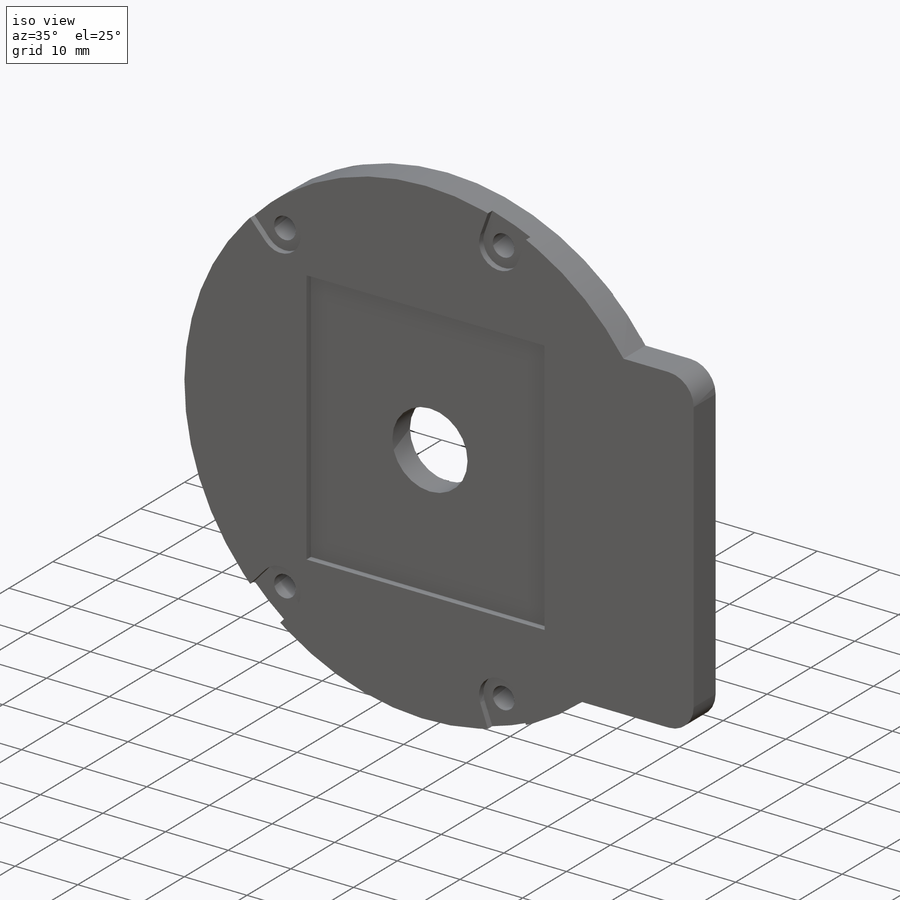
[diagram: iso view]
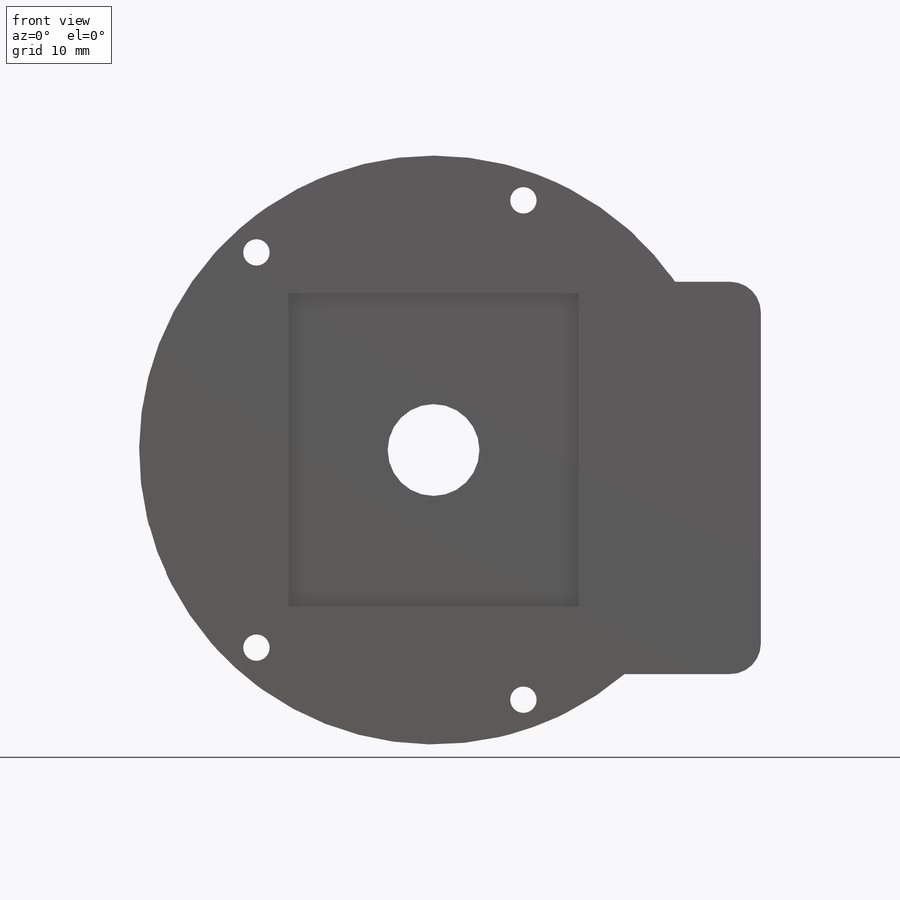
[diagram: front view]
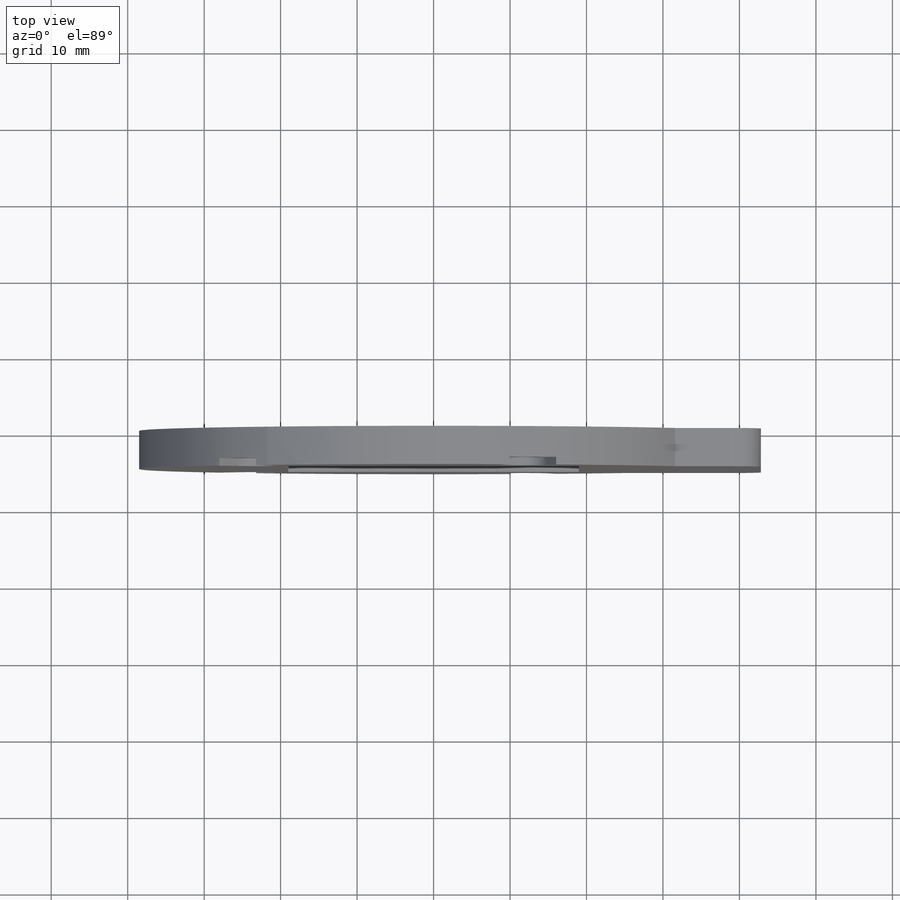
[diagram: top view]
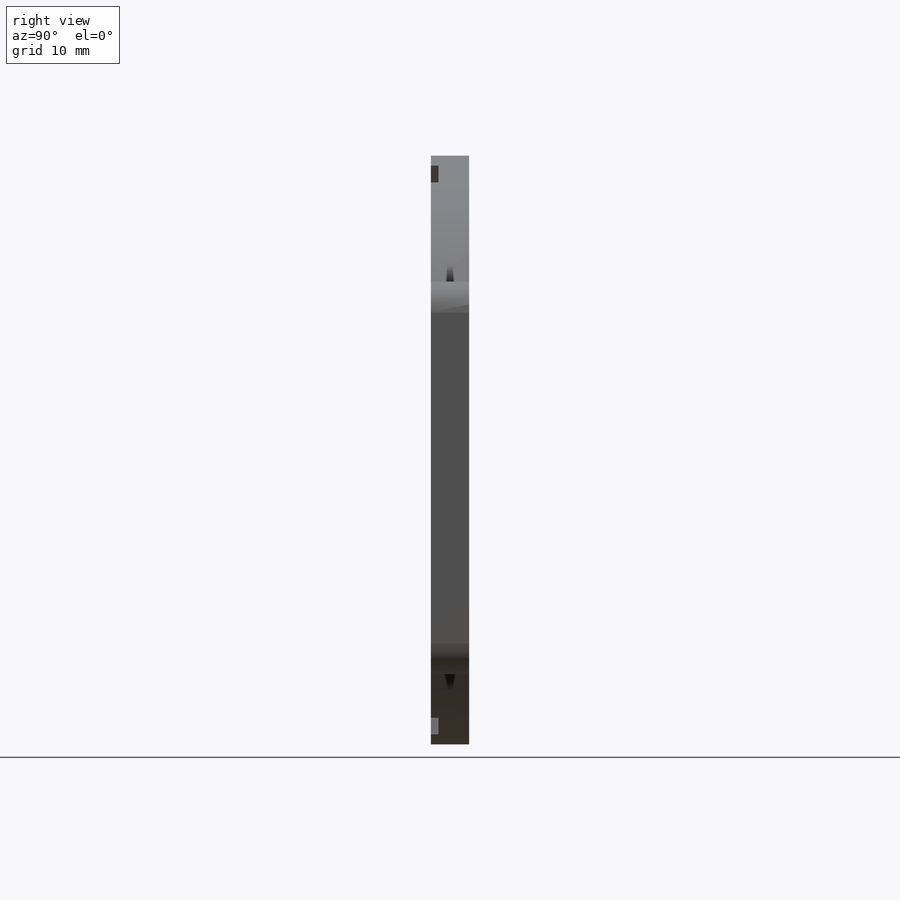
[diagram: right view]
SOLIDWORKS PART (.sldprt)
format: sldprt  version: not decoded by parser v0  size: 261,632 bytes
history: native  units: mm
features: sketch x3, extrude x2, material x1, hole x1, fillet x1 + 1 further entry (+17 scaffold rows collapsed; 3 parser-record rows omitted)
feature tree (29):
  scaffold x17  (default folders/planes/origin — collapsed)
  material  "ABS"
  "RobotHandParameters"
  parser-record x3  (decoder bookkeeping rows leaked as tree rows — omitted from the tree; the rows remain in map.json)
  sketch  "Sketch1"  dims[c1.D1=77.0mm c1.D2=69.4mm c1.D3=3.45mm c1.D6=50.0mm c1.D7=~7.762614mm c1.D4=25.84mm c1.D5=32.65mm c2.D6=42.8mm c2.D7=50.5mm c2.D8=22.0mm c3.D7=29.3mm]
  extrude  "Main Flange Coupling"  Depth=4mm
  sketch  "Sketch3"  dims[c1.D1=6.45mm c1.D2=12.0mm c1.D3=3.0mm c1.D4=14.0mm c1.D5=20.0mm c2.D4=12.5mm c2.D5=14.0mm c3.D4=14.0mm c3.D5=21.5mm c3.D6=~3.803204mm c4.D6=~4.95507deg c5.D6=~3.803204mm c5.D2=38.0mm c5.D3=41.0mm c5.D4=28.7mm]
  extrude  "Coupling Base"  Depth=1mm
  sketch  "Sketch4"  dims[D1=12.0mm]
  hole  "Wire Hole"  [1 undecoded]
  fillet  "Flange Coupling Contouring"  Radius=4mm
decode coverage: 6 of 7 modeling features carry decoded parameters; 1 rows unclassified (native names shown)
note: ~ marks probable driven/reference dimensions
note: 1 parameter value undecoded
note: suppression state not decoded; provenance and decode notes live in map.json
